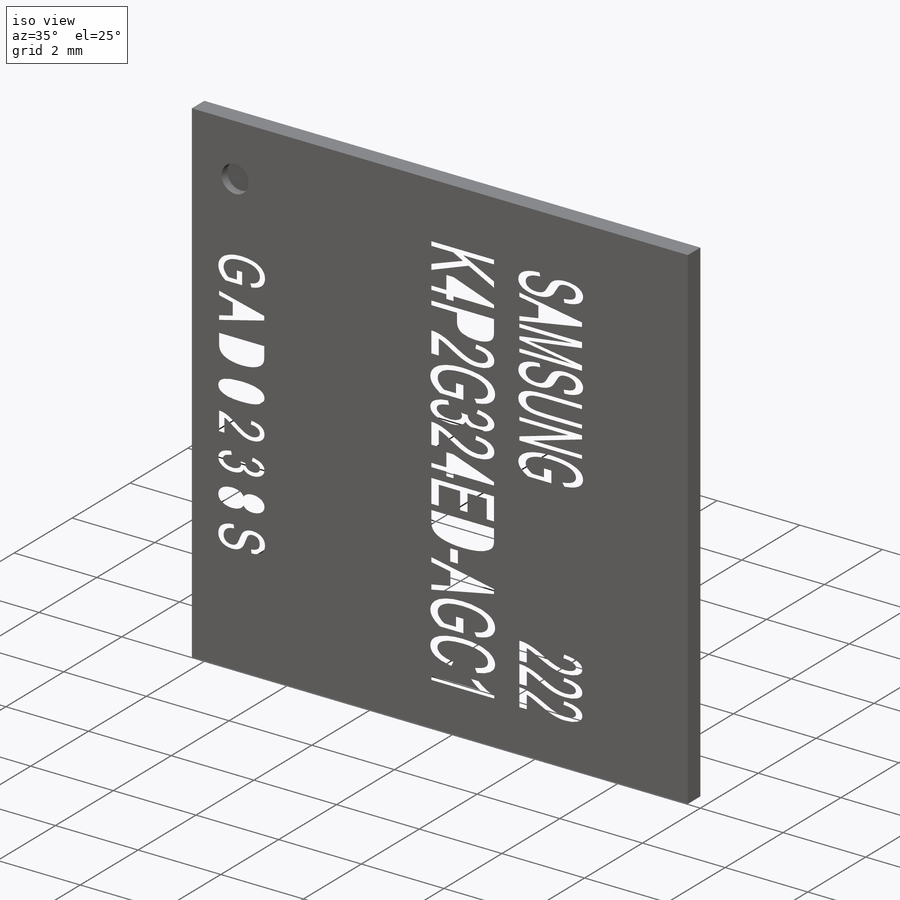
[diagram: iso view]
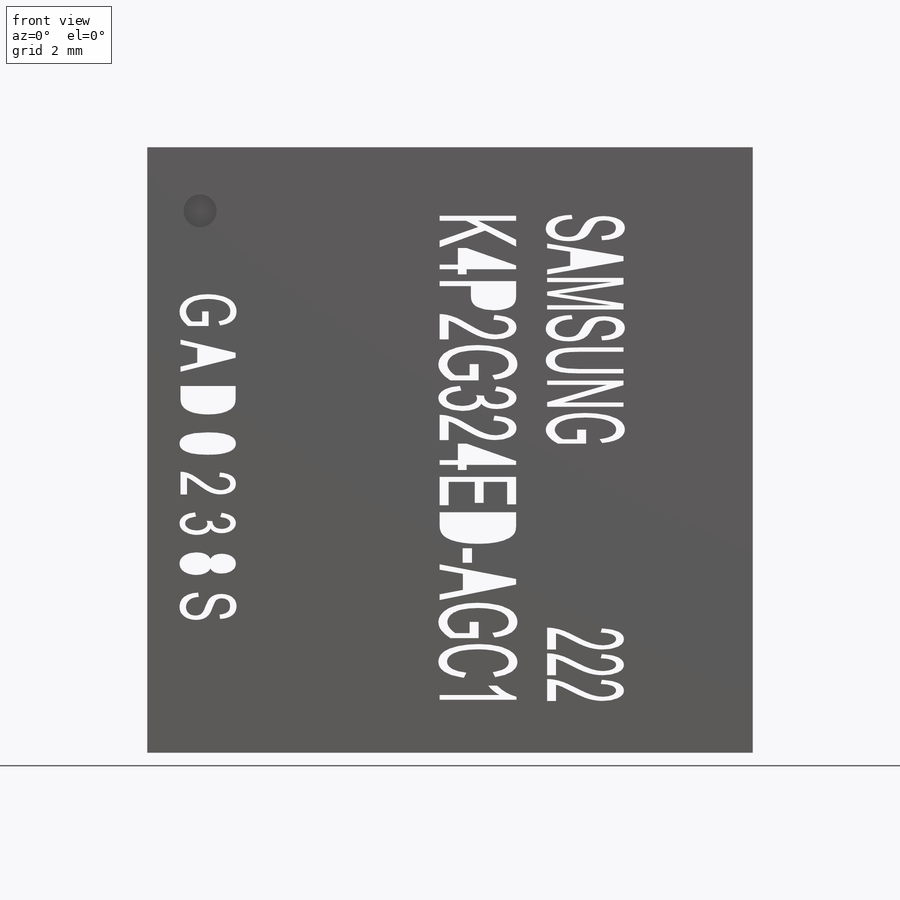
[diagram: front view]
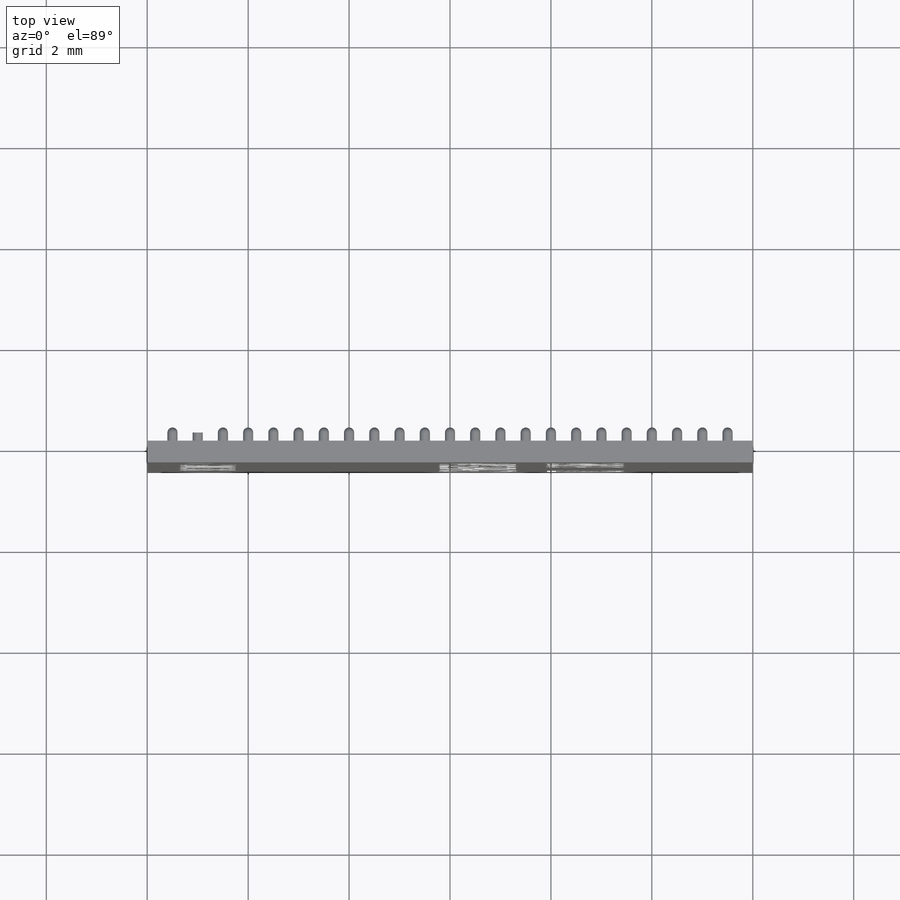
[diagram: top view]
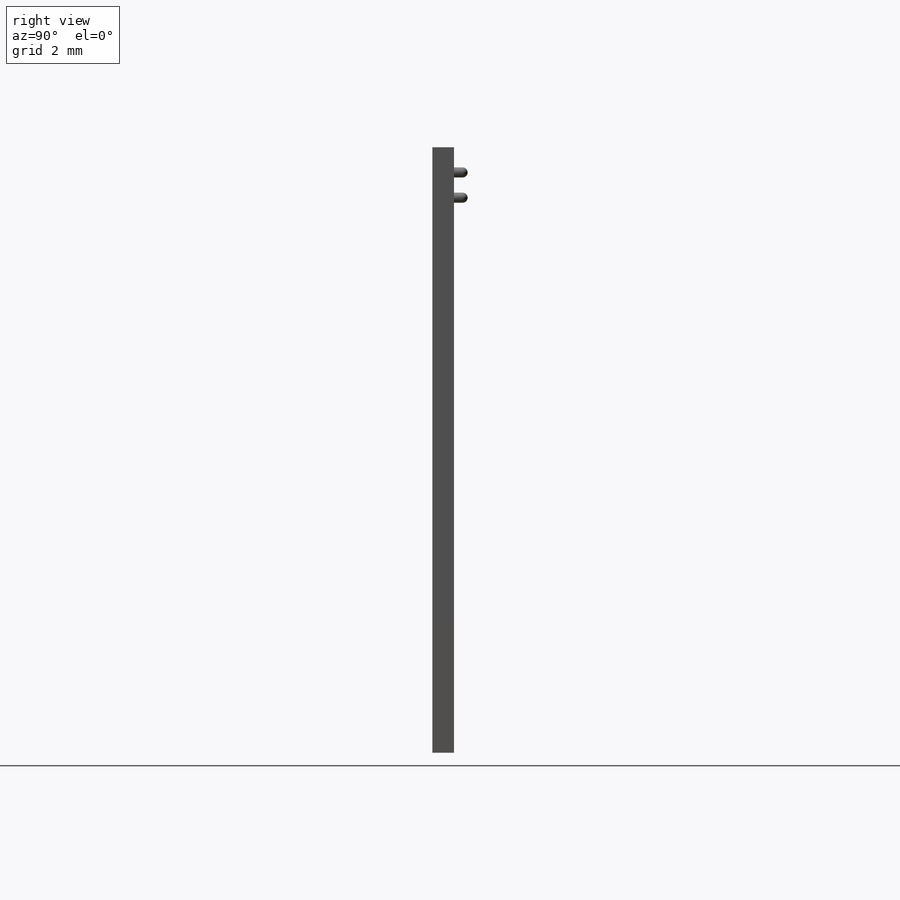
[diagram: right view]
SOLIDWORKS PART (.sldprt)
format: sldprt  version: not decoded by parser v0  size: 2,360,320 bytes
history: native  units: mm
features: sketch x4, pattern_linear x4, plane x3, extrude x3, material x1, cut_extrude x1, fillet x1 (+10 scaffold rows collapsed)
feature tree (27):
  scaffold x10  (default folders/planes/origin — collapsed)
  material  "Material <not specified>"
  plane  "Plano frontal"
  plane  "Plano superior"
  plane  "Plano direito"
  sketch  "Esboço1"  dims[D1=12.0mm D2=12.0mm]
  extrude  "Ressalto-extrusão1"  Depth=0.43mm
  sketch  "Esboço2"
  cut_extrude  "Corte-extrusão1"  Depth=0.2mm
  sketch  "Esboço3"  dims[D3=0.2mm D1=5.5mm D2=5.5mm]
  extrude  "Ressalto-extrusão2"  Depth=0.27mm
  fillet  "Filete1"  Radius=0.0999mm
  pattern_linear  "Padrão linear1"  Count1=23 Count2=2 Spacing1=0.5mm Spacing2=0.5mm
  pattern_linear  "Padrão linear2"  Count1=2 Count2=1 Spacing1=10.5mm Spacing2=0.5mm
  pattern_linear  "Padrão linear3"  Count1=23 Count2=2 Spacing1=0.5mm Spacing2=0.5mm
  pattern_linear  "Padrão linear4"  Count1=2 Count2=1 Spacing1=10.5mm Spacing2=0.5mm
  sketch  "Esboço6"
  extrude  "Ressalto-extrusão3"  Depth=0.01mm
decode coverage: 11 of 13 modeling features carry decoded parameters
note: suppression state not decoded; provenance and decode notes live in map.json
